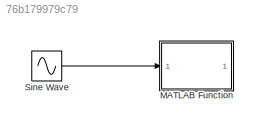
MODEL slx_76b179979c79
KIND model
CONFIG AbsTol = auto
CONFIG EnableMultiTasking = off
CONFIG FixedStep = auto
CONFIG MaxStep = auto
CONFIG MinStep = auto
CONFIG RelTol = 1e-3
CONFIG SampleTimeConstraint = Unconstrained
CONFIG SolverName = VariableStepAuto
CONFIG StartFcn = lib_name = '';\n\nif strcmp(computer, 'PCWIN')\n  lib_name = 'dxl_x86_c';\nelseif strcmp(computer, 'PCWIN64')\n  lib_name = 'dxl_x64_c';\nelseif strcmp(computer, 'GLNX86')\n  lib_name = 'libdxl_x86_c';\nelseif strcmp(computer, 'GLNXA64')\n  lib_name = 'libdxl_x64_c';\nelseif strcmp(computer, 'MACI64')\n  lib_name = 'libdxl_mac_c';\nend\n\n% Load Libraries\nif ~libisloaded(lib_name)\n    [notfound, warnings] = loa...<+3338ch>
CONFIG StartTime = 0.0
CONFIG StopTime = 10.0
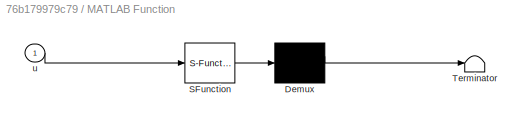
BLOCK [SubSystem] MATLAB Function
  ErrorFcn = Stateflow.Translate.translate
  LibrarySourceBlock = simulink/User-Defined\nFunctions/MATLAB Function
  PermitHierarchicalResolution = ExplicitOnly
  SFBlockType = MATLAB Function
  TreatAsAtomicUnit = on
BLOCK [Demux] MATLAB Function/ Demux 
  Outputs = 1
BLOCK [S-Function] MATLAB Function/ SFunction 
  EnableBusSupport = on
  FunctionName = sf_sfun
  PortCounts = [1 1]
  SFcnIsStateOwnerBlock = off
  SFunctionDeploymentMode = off
  Tag = Stateflow S-Function 2
BLOCK [Terminator] MATLAB Function/ Terminator 
BLOCK [Inport] MATLAB Function/u
BLOCK [Sin] Sine Wave
  SampleTime = 0
LINE Sine Wave:1 -> MATLAB Function:1
CHART MATLAB Function states=1 transitions=1
  STATE_LABEL 'eML_blk_kernel()'
  STATE_LABEL 'SCRIPT:\nfunction sendCurrentOne(u)\n    PROTOCOL_VERSION    = 2.0;\n    DXL_ID              = 11;\n    ADDR_GOAL_CURRENT   = 102;\n    COMM_SUCCESS                = 0;\n    COMM_TX_FAIL                = -1001; \n    dxl_comm_result = COMM_TX_FAIL;\n    port_num = 0;\n\n    % 1.5A / 1.6 N-m\n    \n    % 0.9375 A/N-m\n    \n    % Current in Amps = 0.9375 * t[N-m]\n\n    % Current in mA = Current in Amps * 1000\n\n  ...<+633ch>'
CHART  states=0 transitions=0
